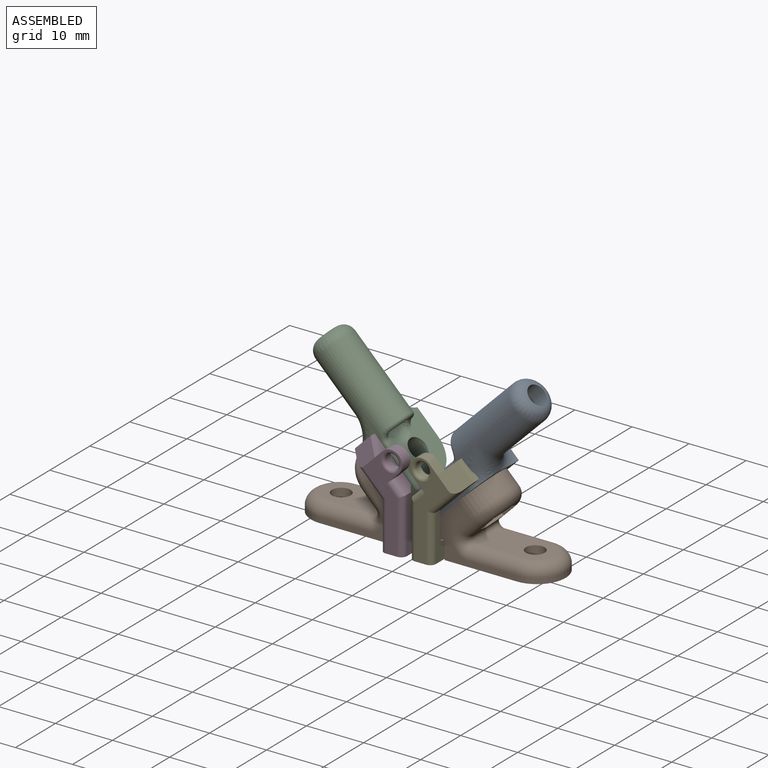
[diagram: assembled view]
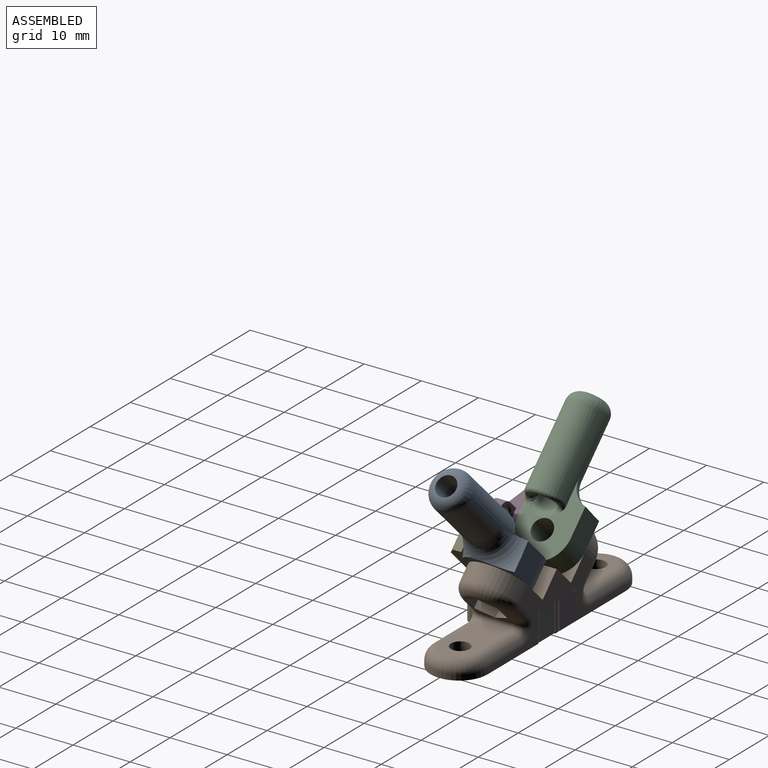
[diagram: assembled view, second angle]
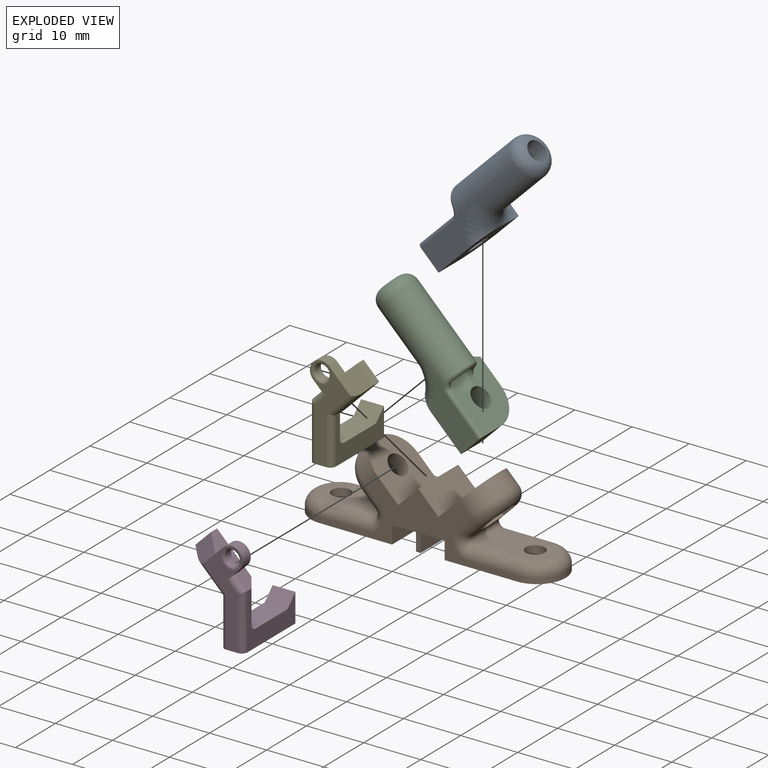
[diagram: exploded view]
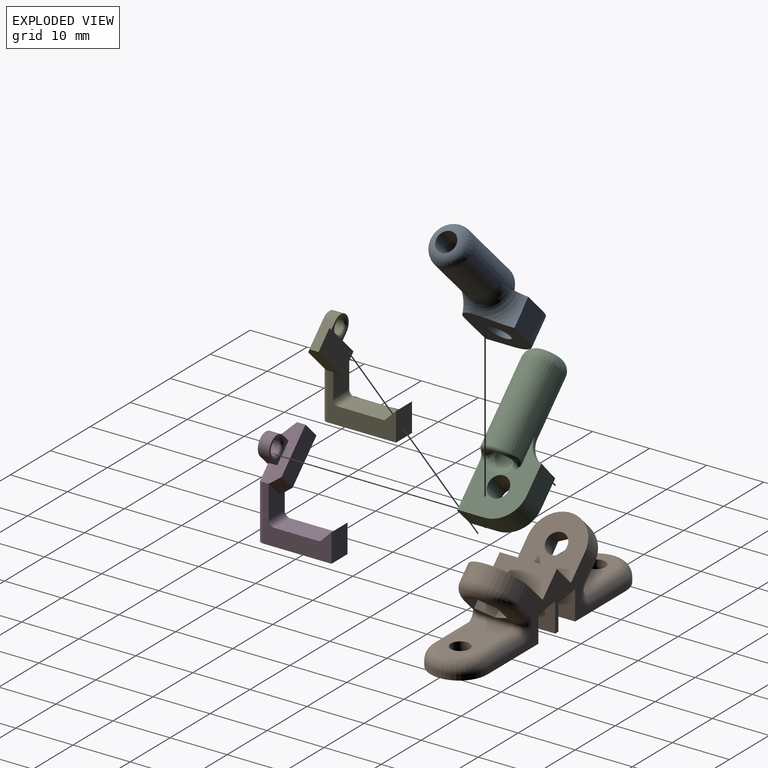
[diagram: exploded view, second angle]
ASSEMBLY  parts=5 mates=4
PART A: 31 faces, bbox 24.6x26.5x27.2 mm
  f0: plane 10.18x10.18mm, normal (-0.71,0,0.71), area 64.6mm2, adj f3,f4,f5,f6,f8,f14,f16,f19
  f1: plane 17.51x13.55mm, normal (0,-1,0), area 42.3mm2, adj f6,f7,f8,f23,f29,f30
  f2: plane 0.91x0.89mm, normal (0.71,0,0.71), area 0.5mm2, adj f3,f7,f16
  f3: plane 7.7x7.61mm, normal (0,1,0), area 25.2mm2, adj f0,f2,f4,f7,f16
  f4: cylinder r=5mm len=7.07mm, axis (0.71,0,-0.71), area 39.3mm2, adj f0,f3,f6,f7
  f5: cylinder r=1.85mm len=6.15mm, axis (0.71,0,-0.71), area 58.1mm2, adj f0,f7
  f6: plane 5x3.54mm, normal (-0.71,0,-0.71), area 24.9mm2, adj f0,f1,f4,f7,f29
  f7: plane 10.31x8mm, normal (0.71,0,-0.71), area 87mm2, adj f1,f2,f3,f4,f5,f6,f16,f23
  f8: cylinder r=3.5mm len=15.38mm, axis (-0.71,0,-0.71), area 268.3mm2, adj f0,f1,f15,f16,f24,f25,f26,f27
  f9: cylinder r=1.75mm len=14.14mm, axis (-0.71,0,-0.71), area 174.3mm2, adj f10,f11,f12,f13,f15
  f10: torus R=0.25mm, axis (-0.71,0,-0.71), area 4.7mm2, adj f9,f14
  f11: torus R=3.25mm, axis (0.71,0,0.71), area 9.9mm2, adj f9,f17,f18,f21,f22,f26
  f12: cylinder r=1.5mm len=0.89mm, axis (-0.71,0,-0.71), area 0.2mm2, adj f9,f14,f17
  f13: cylinder r=1.5mm len=0.89mm, axis (-0.71,0,-0.71), area 0.2mm2, adj f9,f14,f22
  f14: bspline ~5.77x2.71mm, area 7.8mm2, adj f0,f10,f12,f13,f18,f21
  f15: torus R=1.5mm, axis (0.71,0,0.71), area 52.2mm2, adj f8,f9
  f16: torus R=7.5mm, axis (-0.71,0,-0.71), area 44.7mm2, adj f0,f2,f3,f7,f8,f23
  f17: bspline ~1.33x0.93mm, area 0.3mm2, adj f11,f12,f18
  f18: bspline ~1.65x1.64mm, area 2.3mm2, adj f11,f14,f17,f19,f27
  f19: bspline ~1.71x1.44mm, area 0.2mm2, adj f0,f18,f28,f30
  f20: bspline ~1.71x1.44mm, area 0.2mm2, adj f0,f21,f24
  f21: bspline ~1.64x1.54mm, area 2.3mm2, adj f11,f14,f20,f22,f25
  f22: bspline ~1.33x0.93mm, area 0.3mm2, adj f11,f13,f21
  f23: bspline ~8.86x3.57mm, area 9.7mm2, adj f1,f7,f16
  f24: bspline ~2.84x1.3mm, area 1.2mm2, adj f0,f8,f20,f25
  f25: bspline ~1.53x1.42mm, area 0.6mm2, adj f8,f21,f24,f26
  f26: torus R=2.9mm, axis (-0.71,0,-0.71), area 8.5mm2, adj f8,f11,f25,f27
  f27: bspline ~1.37x1.24mm, area 0.6mm2, adj f8,f18,f26,f28
  f28: bspline ~1.62x1.3mm, area 0.7mm2, adj f8,f19,f27,f30
  f29: cylinder r=0.6mm len=6.09mm, axis (-0.71,0,-0.71), area 7.5mm2, adj f0,f1,f6,f30
  f30: bspline ~1.65x1mm, area 1.1mm2, adj f1,f19,f28,f29
PART B: 65 faces, bbox 45.4x10.8x14.4 mm
  f0: plane 17.7x10mm, normal (0,0,-1), area 157.7mm2, adj f13,f14,f16,f34,f64
  f1: plane 17.7x10mm, normal (0,0,-1), area 157.7mm2, adj f13,f14,f15,f33,f60
  f2: plane 10x7.07mm, normal (-0.71,0,0.71), area 78.5mm2, adj f13,f14,f17,f36,f56
  f3: plane 2.73x1.12mm, normal (-0.71,0,-0.71), area 2.2mm2, adj f19,f38,f52
  f4: plane 1.33x0.54mm, normal (0.71,0,-0.71), area 0.1mm2, adj f30,f45
  f5: plane 1.33x0.54mm, normal (0.71,0,-0.71), area 0.1mm2, adj f31,f45
  f6: plane 2.93x2.88mm, normal (0.71,0,-0.71), area 2.7mm2, adj f26,f27,f37,f45,f46
  f7: plane 2.93x2.88mm, normal (0.71,0,-0.71), area 2.7mm2, adj f28,f29,f37,f43,f45
  f8: plane 2.73x1.12mm, normal (-0.71,0,-0.71), area 2.2mm2, adj f24,f38,f48
  f9: plane 11.54x6mm, normal (0,0,1), area 56.8mm2, adj f16,f38,f49,f51,f53
  f10: plane 10x0.8mm, normal (0,0,-1), area 8mm2, adj f13,f14,f58,f62
  f11: plane 11.54x6mm, normal (0,0,1), area 56.8mm2, adj f15,f37,f39,f40,f42
  f12: plane 10x7.07mm, normal (0.71,0,0.71), area 78.5mm2, adj f13,f14,f18,f35,f55
  f13: plane 34.6x10.07mm, normal (0,-1,0), area 115.6mm2, adj f0,f1,f2,f10,f12,f33,f34,f35
  f14: plane 34.6x10.07mm, normal (0,1,0), area 98.4mm2, adj f0,f1,f2,f10,f12,f33,f34,f35
  f15: cylinder r=1.65mm len=3.3mm, axis (0,0,-1), area 31.1mm2, adj f1,f11
  f16: cylinder r=1.65mm len=3.3mm, axis (0,0,-1), area 31.1mm2, adj f0,f9
  f17: cylinder r=1.85mm len=4.38mm, axis (-0.71,0,0.71), area 29.1mm2, adj f2,f32
  f18: cylinder r=1.85mm len=4.38mm, axis (0.71,0,0.71), area 29.1mm2, adj f12,f25
  f19: plane 3.01x3mm, normal (-0.61,0.5,0.61), area 8.7mm2, adj f3,f20,f24,f25,f38
  f20: plane 4.22x4.18mm, normal (0,1,0), area 8.6mm2, adj f19,f21,f25,f50,f52
  f21: plane 3x2.95mm, normal (0.61,0.5,-0.61), area 8.6mm2, adj f20,f22,f25,f50
  f22: plane 3x2.95mm, normal (0.61,-0.5,-0.61), area 8.6mm2, adj f21,f23,f25,f50
  f23: plane 4.22x4.18mm, normal (0,-1,0), area 8.6mm2, adj f22,f24,f25,f48,f50
  f24: plane 3.01x3mm, normal (-0.61,-0.5,0.61), area 8.7mm2, adj f8,f19,f23,f25,f38
  f25: plane 6x4.9mm, normal (-0.71,0,-0.71), area 20.4mm2, adj f18,f19,f20,f21,f22,f23,f24
  f26: plane 4.14x4.11mm, normal (0,1,0), area 8.4mm2, adj f6,f27,f31,f32,f45
  f27: plane 2.95x2.95mm, normal (0.61,0.5,0.61), area 8.4mm2, adj f6,f26,f28,f32,f37
  f28: plane 2.95x2.95mm, normal (0.61,-0.5,0.61), area 8.4mm2, adj f7,f27,f29,f32,f37
  f29: plane 4.14x4.11mm, normal (0,-1,0), area 8.4mm2, adj f7,f28,f30,f32,f45
  f30: plane 2.93x2.93mm, normal (-0.61,-0.5,-0.61), area 8.4mm2, adj f4,f29,f31,f32,f45
  f31: plane 2.93x2.93mm, normal (-0.61,0.5,-0.61), area 8.4mm2, adj f5,f26,f30,f32,f45
  f32: plane 5.8x4.74mm, normal (0.71,0,-0.71), area 18.4mm2, adj f17,f26,f27,f28,f29,f30,f31
  f33: cylinder r=5mm len=10mm, axis (0,0,-1), area 15.7mm2, adj f1,f13,f14,f40
  f34: cylinder r=5mm len=10mm, axis (0,0,1), area 15.7mm2, adj f0,f13,f14,f51
  f35: cylinder r=5mm len=10mm, axis (0.71,0,0.71), area 47.1mm2, adj f12,f13,f14,f50
  f36: cylinder r=5mm len=10mm, axis (0.71,0,-0.71), area 47.1mm2, adj f2,f13,f14,f45
  f37: cylinder r=0.7mm len=6mm, axis (0,-1,0), area 9.9mm2, adj f6,f7,f11,f27,f28,f41,f44
  f38: cylinder r=0.7mm len=6mm, axis (0,-1,0), area 9.9mm2, adj f3,f8,f9,f19,f24,f47,f54
  f39: cylinder r=2mm len=8.54mm, axis (-1,0,0), area 26.8mm2, adj f11,f14,f40,f41
  f40: torus R=3mm, axis (0,0,-1), area 42.2mm2, adj f11,f33,f39,f42
  f41: torus R=2.7mm, axis (0,-1,0), area 10.6mm2, adj f14,f37,f39,f43
  f42: cylinder r=2mm len=8.54mm, axis (1,0,0), area 26.8mm2, adj f11,f13,f40,f44
  f43: cylinder r=2mm len=3.75mm, axis (0.71,0,0.71), area 10.4mm2, adj f7,f14,f41,f45
  f44: torus R=2.7mm, axis (0,-1,0), area 10.6mm2, adj f13,f37,f42,f46
  f45: torus R=3mm, axis (-0.71,0,0.71), area 41.4mm2, adj f4,f5,f6,f7,f26,f29,f30,f31
  f46: cylinder r=2mm len=3.75mm, axis (-0.71,0,-0.71), area 10.4mm2, adj f6,f13,f44,f45
  f47: torus R=2.7mm, axis (0,-1,0), area 10.6mm2, adj f14,f38,f48,f49
  f48: cylinder r=2mm len=3.75mm, axis (0.71,0,-0.71), area 10.4mm2, adj f8,f14,f23,f47,f50
  f49: cylinder r=2mm len=8.54mm, axis (-1,0,0), area 26.8mm2, adj f9,f14,f47,f51
  f50: torus R=3mm, axis (0.71,0,0.71), area 40.7mm2, adj f20,f21,f22,f23,f35,f48,f52
  f51: torus R=3mm, axis (0,0,-1), area 42.2mm2, adj f9,f34,f49,f53
  f52: cylinder r=2mm len=3.75mm, axis (-0.71,0,0.71), area 10.4mm2, adj f3,f13,f20,f50,f54
  f53: cylinder r=2mm len=8.54mm, axis (1,0,0), area 26.8mm2, adj f9,f13,f51,f54
  f54: torus R=2.7mm, axis (0,-1,0), area 10.6mm2, adj f13,f38,f52,f53
  f55: plane 10x3.54mm, normal (-0.71,0,0.71), area 50mm2, adj f12,f13,f14,f56
  f56: plane 10x3.54mm, normal (0.71,0,0.71), area 50mm2, adj f2,f13,f14,f55
  f57: plane 4.2x2.04mm, normal (0,0.71,-0.71), area 12.1mm2, adj f14,f58,f59,f60
  f58: plane 10x5.14mm, normal (1,0,0), area 33.1mm2, adj f10,f13,f14,f57,f59
  f59: plane 7.96x4.2mm, normal (0,0,-1), area 33.4mm2, adj f13,f57,f58,f60
  f60: plane 10x5.14mm, normal (-1,0,0), area 33.1mm2, adj f1,f13,f14,f57,f59
  f61: plane 4.2x2.04mm, normal (0,0.71,-0.71), area 12.1mm2, adj f14,f62,f63,f64
  f62: plane 10x5.14mm, normal (-1,0,0), area 33.1mm2, adj f10,f13,f14,f61,f63
  f63: plane 7.96x4.2mm, normal (0,0,-1), area 33.4mm2, adj f13,f61,f62,f64
  f64: plane 10x5.14mm, normal (1,0,0), area 33.1mm2, adj f0,f13,f14,f61,f63
PART C: 31 faces, bbox 24.6x26.5x27.2 mm
  f0: plane 10.18x10.18mm, normal (0.71,0,0.71), area 64.6mm2, adj f3,f4,f5,f6,f8,f14,f16,f19
  f1: plane 17.51x13.55mm, normal (0,-1,0), area 42.3mm2, adj f6,f7,f8,f23,f29,f30
  f2: plane 0.91x0.89mm, normal (-0.71,0,0.71), area 0.5mm2, adj f3,f7,f16
  f3: plane 7.7x7.61mm, normal (0,1,0), area 25.2mm2, adj f0,f2,f4,f7,f16
  f4: cylinder r=5mm len=7.07mm, axis (-0.71,0,-0.71), area 39.3mm2, adj f0,f3,f6,f7
  f5: cylinder r=1.85mm len=6.15mm, axis (-0.71,0,-0.71), area 58.1mm2, adj f0,f7
  f6: plane 5x3.54mm, normal (0.71,0,-0.71), area 24.9mm2, adj f0,f1,f4,f7,f29
  f7: plane 10.31x8mm, normal (-0.71,0,-0.71), area 87mm2, adj f1,f2,f3,f4,f5,f6,f16,f23
  f8: cylinder r=3.5mm len=15.38mm, axis (0.71,0,-0.71), area 268.3mm2, adj f0,f1,f15,f16,f24,f25,f26,f27
  f9: cylinder r=1.75mm len=14.14mm, axis (0.71,0,-0.71), area 174.3mm2, adj f10,f11,f12,f13,f15
  f10: torus R=0.25mm, axis (0.71,0,-0.71), area 4.7mm2, adj f9,f14
  f11: torus R=3.25mm, axis (-0.71,0,0.71), area 9.9mm2, adj f9,f17,f18,f21,f22,f26
  f12: cylinder r=1.5mm len=0.89mm, axis (0.71,0,-0.71), area 0.2mm2, adj f9,f14,f17
  f13: cylinder r=1.5mm len=0.89mm, axis (0.71,0,-0.71), area 0.2mm2, adj f9,f14,f22
  f14: bspline ~5.77x2.71mm, area 7.8mm2, adj f0,f10,f12,f13,f18,f21
  f15: torus R=1.5mm, axis (-0.71,0,0.71), area 52.2mm2, adj f8,f9
  f16: torus R=7.5mm, axis (0.71,0,-0.71), area 44.7mm2, adj f0,f2,f3,f7,f8,f23
  f17: bspline ~1.33x0.93mm, area 0.3mm2, adj f11,f12,f18
  f18: bspline ~1.65x1.64mm, area 2.3mm2, adj f11,f14,f17,f19,f27
  f19: bspline ~1.71x1.44mm, area 0.2mm2, adj f0,f18,f28,f30
  f20: bspline ~1.71x1.44mm, area 0.2mm2, adj f0,f21,f24
  f21: bspline ~1.64x1.54mm, area 2.3mm2, adj f11,f14,f20,f22,f25
  f22: bspline ~1.33x0.93mm, area 0.3mm2, adj f11,f13,f21
  f23: bspline ~8.86x3.57mm, area 9.7mm2, adj f1,f7,f16
  f24: bspline ~2.84x1.3mm, area 1.2mm2, adj f0,f8,f20,f25
  f25: bspline ~1.53x1.42mm, area 0.6mm2, adj f8,f21,f24,f26
  f26: torus R=2.9mm, axis (0.71,0,-0.71), area 8.5mm2, adj f8,f11,f25,f27
  f27: bspline ~1.37x1.24mm, area 0.6mm2, adj f8,f18,f26,f28
  f28: bspline ~1.62x1.3mm, area 0.7mm2, adj f8,f19,f27,f30
  f29: cylinder r=0.6mm len=6.09mm, axis (0.71,0,-0.71), area 7.5mm2, adj f0,f1,f6,f30
  f30: bspline ~1.65x1mm, area 1.1mm2, adj f1,f19,f28,f29
PART D: 26 faces, bbox 10x13x17 mm
  f0: plane 7.07x7.07mm, normal (0.71,0,0.71), area 19.9mm2, adj f1,f5,f12,f13,f14,f15,f18,f21
  f1: plane 12x9.72mm, normal (1,0,0), area 44.9mm2, adj f0,f2,f4,f8,f9,f10,f11,f25
  f2: plane 8x4mm, normal (0,0,1), area 32mm2, adj f1,f3,f10,f11
  f3: plane 12x8.21mm, normal (-1,0,0), area 43.4mm2, adj f2,f4,f6,f8,f9,f10,f11,f22
  f4: plane 13x4mm, normal (0,0,-1), area 51.6mm2, adj f1,f3,f7,f9,f22,f25
  f5: plane 2.76x2.76mm, normal (-0.71,0,0.71), area 5.9mm2, adj f0,f6,f12,f21
  f6: plane 7.07x7.07mm, normal (-0.71,0,-0.71), area 21.4mm2, adj f3,f5,f8,f12,f13,f21,f23
  f7: plane 16.67x6.88mm, normal (0,-1,0), area 38.2mm2, adj f4,f14,f15,f17,f19,f21,f22,f23
  f8: plane 5.72x4mm, normal (0,1,0), area 16.4mm2, adj f1,f3,f6,f11,f13
  f9: plane 5x4mm, normal (0,1,0), area 20mm2, adj f1,f3,f4,f10
  f10: plane 4x2mm, normal (0,-0.71,0.71), area 11.3mm2, adj f1,f2,f3,f9
  f11: cylinder r=1mm len=4mm, axis (1,0,0), area 6.3mm2, adj f1,f2,f3,f8
  f12: plane 8.77x8.77mm, normal (0,1,0), area 33.1mm2, adj f0,f5,f6,f13
  f13: plane 3.82x3.82mm, normal (0.5,0.71,-0.5), area 8.3mm2, adj f0,f6,f8,f12
  f14: plane 2x1.41mm, normal (-0.71,0,0.71), area 4mm2, adj f0,f7,f17,f18
  f15: plane 2.12x2.12mm, normal (0.71,0,-0.71), area 4.2mm2, adj f0,f7,f17,f18,f24
  f16: cylinder r=1.25mm len=2.5mm, axis (0,-1,0), area 7.9mm2, adj f19,f20
  f17: cylinder r=2mm len=3.41mm, axis (0,-1,0), area 12.6mm2, adj f7,f14,f15,f18
  f18: plane 4.83x4.83mm, normal (0,1,0), area 4.7mm2, adj f0,f14,f15,f17,f20
  f19: torus R=1.75mm, axis (0,-1,0), area 7.1mm2, adj f7,f16
  f20: torus R=1.75mm, axis (0,-1,0), area 7.1mm2, adj f16,f18
  f21: plane 4.88x4.39mm, normal (-0.39,-0.83,0.39), area 13.7mm2, adj f0,f5,f6,f7,f23
  f22: cylinder r=1mm len=8.62mm, axis (0,0,1), area 13.1mm2, adj f3,f4,f7,f23
  f23: cylinder r=1mm len=5.77mm, axis (-0.71,0,0.71), area 9.3mm2, adj f6,f7,f21,f22
  f24: cylinder r=1mm len=2.83mm, axis (0.71,0,-0.71), area 4.5mm2, adj f0,f7,f15,f25
  f25: cylinder r=1mm len=9.72mm, axis (0,0,-1), area 15mm2, adj f1,f4,f7,f24
PART E: 26 faces, bbox 10x13x17 mm
  f0: plane 7.07x7.07mm, normal (-0.71,0,0.71), area 19.9mm2, adj f1,f5,f12,f13,f14,f15,f18,f21
  f1: plane 12x9.72mm, normal (-1,0,0), area 44.9mm2, adj f0,f2,f4,f8,f9,f10,f11,f25
  f2: plane 8x4mm, normal (0,0,1), area 32mm2, adj f1,f3,f10,f11
  f3: plane 12x8.21mm, normal (1,0,0), area 43.4mm2, adj f2,f4,f6,f8,f9,f10,f11,f22
  f4: plane 13x4mm, normal (0,0,-1), area 51.6mm2, adj f1,f3,f7,f9,f22,f25
  f5: plane 2.76x2.76mm, normal (0.71,0,0.71), area 5.9mm2, adj f0,f6,f12,f21
  f6: plane 7.07x7.07mm, normal (0.71,0,-0.71), area 21.4mm2, adj f3,f5,f8,f12,f13,f21,f23
  f7: plane 16.67x6.88mm, normal (0,-1,0), area 38.2mm2, adj f4,f14,f15,f17,f19,f21,f22,f23
  f8: plane 5.72x4mm, normal (0,1,0), area 16.4mm2, adj f1,f3,f6,f11,f13
  f9: plane 5x4mm, normal (0,1,0), area 20mm2, adj f1,f3,f4,f10
  f10: plane 4x2mm, normal (0,-0.71,0.71), area 11.3mm2, adj f1,f2,f3,f9
  f11: cylinder r=1mm len=4mm, axis (-1,0,0), area 6.3mm2, adj f1,f2,f3,f8
  f12: plane 8.77x8.77mm, normal (0,1,0), area 33.1mm2, adj f0,f5,f6,f13
  f13: plane 3.82x3.82mm, normal (-0.5,0.71,-0.5), area 8.3mm2, adj f0,f6,f8,f12
  f14: plane 2x1.41mm, normal (0.71,0,0.71), area 4mm2, adj f0,f7,f17,f18
  f15: plane 2.12x2.12mm, normal (-0.71,0,-0.71), area 4.2mm2, adj f0,f7,f17,f18,f24
  f16: cylinder r=1.25mm len=2.5mm, axis (0,-1,0), area 7.9mm2, adj f19,f20
  f17: cylinder r=2mm len=3.41mm, axis (0,-1,0), area 12.6mm2, adj f7,f14,f15,f18
  f18: plane 4.83x4.83mm, normal (0,1,0), area 4.7mm2, adj f0,f14,f15,f17,f20
  f19: torus R=1.75mm, axis (0,-1,0), area 7.1mm2, adj f7,f16
  f20: torus R=1.75mm, axis (0,-1,0), area 7.1mm2, adj f16,f18
  f21: plane 4.88x4.39mm, normal (0.39,-0.83,0.39), area 13.7mm2, adj f0,f5,f6,f7,f23
  f22: cylinder r=1mm len=8.62mm, axis (0,0,1), area 13.1mm2, adj f3,f4,f7,f23
  f23: cylinder r=1mm len=5.77mm, axis (0.71,0,0.71), area 9.3mm2, adj f6,f7,f21,f22
  f24: cylinder r=1mm len=2.83mm, axis (-0.71,0,-0.71), area 4.5mm2, adj f0,f7,f15,f25
  f25: cylinder r=1mm len=9.72mm, axis (0,0,-1), area 15mm2, adj f1,f4,f7,f24
PLACE A rot(axis=(0.42,0,-0.91),0deg) t=(-1.83,-13.98,-4.47)mm
PLACE B t=(-1.83,-13.98,-4.47)mm fixed
PLACE C rot(axis=(-1,0,0),0deg) t=(-1.83,-13.98,-4.47)mm
PLACE D t=(-1.93,-13.98,-4.47)mm
PLACE E t=(-1.83,-14,-4.35)mm
MATE revolute B.f35 <-> C.f4  axis (0.71,0,0.71) through (-16.7,-18.98,32.13)mm
MATE fastened B.f14 <-> D.f9  axis (0,1,0) through (-14.23,-13.98,22.06)mm
MATE revolute A.f4 <-> B.f17  axis (0.71,0,-0.71) through (-2.56,-18.98,32.13)mm
MATE fastened B.f57 <-> E.f10  axis (0,0.71,-0.71) through (-7.13,-15,26.18)mm
